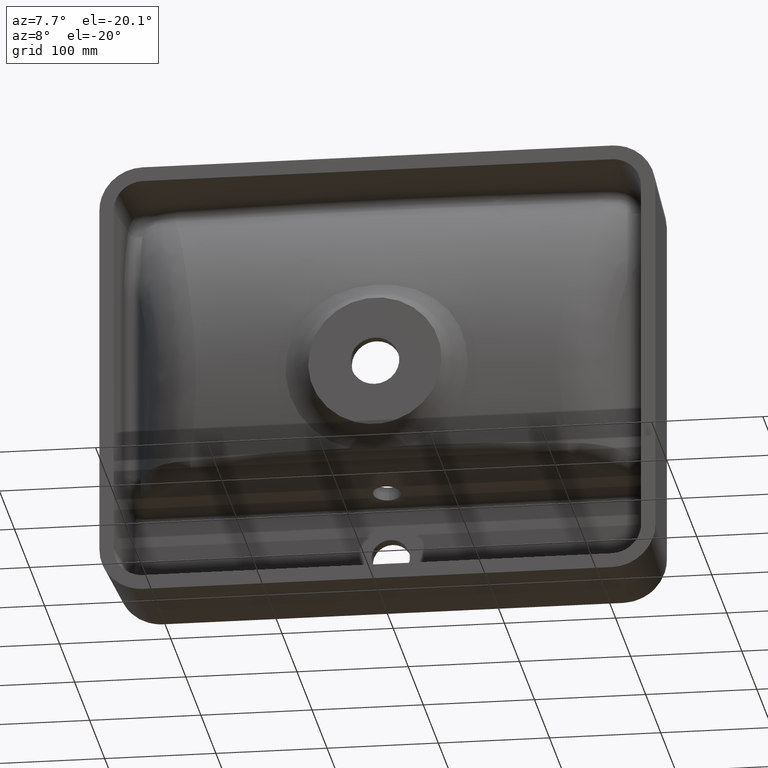
[diagram: clean part render]
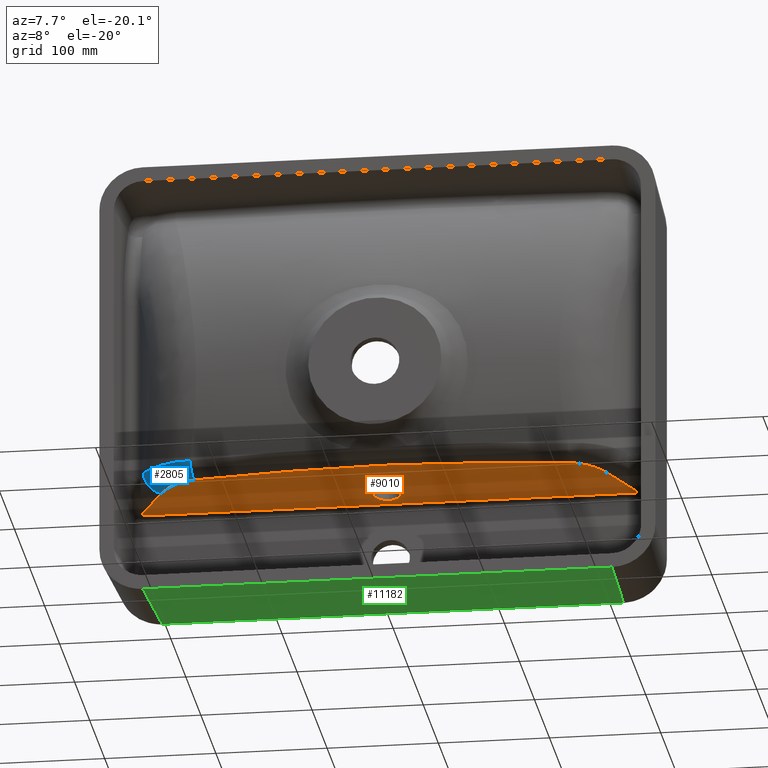
[diagram: same view with three faces highlighted in distinct colors, each labeled with its STEP entity id]
A machine part, auxiliary view with three faces highlighted in distinct colors.
Their STEP definitions:

[orange] entity #9010 — the highlighted planar face has unit normal (0, 0.1736, 0.9848).
#72 = CARTESIAN_POINT ( 'NONE',  ( -112.2322189058417052, 14.36183064371709506, -88.98186102206317116 ) ) ;
#150 = CARTESIAN_POINT ( 'NONE',  ( 244.3859687413687709, 92.74257369032991960, -102.8025007891596232 ) ) ;
#157 = CARTESIAN_POINT ( 'NONE',  ( -35.13712913694892848, 9.897573788452673327, -88.19469208966752660 ) ) ;
#225 = DIRECTION ( 'NONE',  ( 0.5315460139890063607, -0.8341611379077803479, 0.1470851148716148804 ) ) ;
#386 = CARTESIAN_POINT ( 'NONE',  ( -196.9108988935167588, 35.44597624799872904, -92.69956475728351109 ) ) ;
#597 = EDGE_LOOP ( 'NONE', ( #14962, #5832, #6547, #4745, #11209, #6479, #9041, #5111 ) ) ;
#719 = CARTESIAN_POINT ( 'NONE',  ( 179.6458099567844329, 22.47414896784153271, -90.41228161870292013 ) ) ;
#737 = EDGE_CURVE ( 'NONE', #12188, #11615, #1035, .T. ) ;
#1032 = EDGE_CURVE ( 'NONE', #9423, #4418, #12462, .T. ) ;
#1035 = LINE ( 'NONE', #7036, #7816 ) ;
#1075 = CIRCLE ( 'NONE', #3144, 12.49999999999999822 ) ;
#1199 = CARTESIAN_POINT ( 'NONE',  ( 190.3254960337776822, 29.03207218434770098, -91.56862041918746797 ) ) ;
#1435 = CARTESIAN_POINT ( 'NONE',  ( -168.1830258929373940, 19.49272566497119996, -89.88657624949277647 ) ) ;
#1441 = CARTESIAN_POINT ( 'NONE',  ( 98.21972972760023879, 13.34289355543268485, -88.80219492175478990 ) ) ;
#1517 = CARTESIAN_POINT ( 'NONE',  ( -185.5428752960910117, 25.56068567428296845, -90.95652131699436893 ) ) ;
#1718 = CARTESIAN_POINT ( 'NONE',  ( -168.1830258929373940, 19.49272566497119996, -89.88657624949277647 ) ) ;
#1780 = VERTEX_POINT ( 'NONE', #3028 ) ;
#2012 = CARTESIAN_POINT ( 'NONE',  ( 184.1256145856381465, 24.71084304074416949, -90.80667113134639123 ) ) ;
#2053 = VERTEX_POINT ( 'NONE', #1718 ) ;
#2092 = CARTESIAN_POINT ( 'NONE',  ( 168.1830228955440134, 19.49272036721712453, -89.88657531535695000 ) ) ;
#2156 = VERTEX_POINT ( 'NONE', #6824 ) ;
#2570 = CARTESIAN_POINT ( 'NONE',  ( 188.3217901560427947, 27.47404694757935673, -91.29389853332048688 ) ) ;
#2654 = CARTESIAN_POINT ( 'NONE',  ( 77.19849634696660701, 12.00439946092321364, -88.56618229937377862 ) ) ;
#3028 = CARTESIAN_POINT ( 'NONE',  ( 200.7693850947235319, 40.92562268780480395, -93.66577426936574113 ) ) ;
#3144 = AXIS2_PLACEMENT_3D ( 'NONE', #11757, #14426, #8115 ) ;
#3164 = EDGE_CURVE ( 'NONE', #4418, #9423, #1075, .T. ) ;
#3369 = VERTEX_POINT ( 'NONE', #10550 ) ;
#3602 = DIRECTION ( 'NONE',  ( 0.000000000000000000, -0.9848077530122080203, 0.1736481776669307753 ) ) ;
#3841 = EDGE_CURVE ( 'NONE', #2156, #10000, #7661, .T. ) ;
#3863 = CARTESIAN_POINT ( 'NONE',  ( -193.4205650691739891, 31.81351619069727832, -92.05906404283547317 ) ) ;
#3864 = CARTESIAN_POINT ( 'NONE',  ( 193.4626115171106449, 31.82548758118697307, -92.06117492197668639 ) ) ;
#3903 = CARTESIAN_POINT ( 'NONE',  ( -2.832484898710971862E-13, 46.25119439836966961, -94.60481624963537683 ) ) ;
#3982 = AXIS2_PLACEMENT_3D ( 'NONE', #150, #10230, #15155 ) ;
#4024 = CARTESIAN_POINT ( 'NONE',  ( -171.5411002869828963, 19.96590360338471370, -89.97001028671107292 ) ) ;
#4106 = B_SPLINE_CURVE_WITH_KNOTS ( 'NONE', 3,
 ( #5250, #11234, #11150, #72, #14868, #6232, #13894, #11389, #5171, #157, #7516, #10177, #5093, #13655, #14945, #8808, #13730, #7749, #8967, #10099, #2654, #1441, #8886, #13814, #6394, #11313 ),
 .UNSPECIFIED., .F., .F.,
 ( 4, 2, 2, 2, 2, 2, 2, 2, 2, 2, 2, 2, 4 ),
 ( 0.000000000000000000, 0.04212430251815301591, 0.08424860503630603181, 0.1053107562953825432, 0.1263729075544590130, 0.1474350588135355244, 0.1684972100726120081, 0.1895593613316884918, 0.2106215125907650032, 0.2316836638498415146, 0.2527458151089180260, 0.2948701176270710489, 0.3369944201452240717 ),
 .UNSPECIFIED. ) ;
#4418 = VERTEX_POINT ( 'NONE', #9569 ) ;
#4714 = VECTOR ( 'NONE', #225, 1000.000000000000114 ) ;
#4745 = ORIENTED_EDGE ( 'NONE', *, *, #9055, .F. ) ;
#4760 = PLANE ( 'NONE',  #3982 ) ;
#5008 = CARTESIAN_POINT ( 'NONE',  ( 196.9123994016266863, 35.45002385037497561, -92.70027845879093320 ) ) ;
#5031 = CARTESIAN_POINT ( 'NONE',  ( -221.8330235556065873, 77.86824088833463975, -100.1797545961293423 ) ) ;
#5084 = CARTESIAN_POINT ( 'NONE',  ( -98.68438343656839606, -119.2775185368539468, -65.41763807720876400 ) ) ;
#5093 = CARTESIAN_POINT ( 'NONE',  ( -7.045836400741186445, 9.177125483771456871, -88.06765761534673231 ) ) ;
#5111 = ORIENTED_EDGE ( 'NONE', *, *, #3841, .F. ) ;
#5148 = CARTESIAN_POINT ( 'NONE',  ( 168.1830228955440134, 19.49272036721712453, -89.88657531535695000 ) ) ;
#5171 = CARTESIAN_POINT ( 'NONE',  ( -49.16805674985833718, 10.49212591656544369, -88.29952767129135793 ) ) ;
#5225 = ORIENTED_EDGE ( 'NONE', *, *, #1032, .T. ) ;
#5250 = CARTESIAN_POINT ( 'NONE',  ( -168.1830258929373940, 19.49272566497119996, -89.88657624949277647 ) ) ;
#5279 = VECTOR ( 'NONE', #7044, 1000.000000000000227 ) ;
#5322 = CARTESIAN_POINT ( 'NONE',  ( -181.8551785341416576, 23.52309605200449028, -90.59723929097509654 ) ) ;
#5473 = EDGE_CURVE ( 'NONE', #10000, #2053, #10755, .T. ) ;
#5666 = CARTESIAN_POINT ( 'NONE',  ( 181.1696266444409957, 23.16300552676149138, -90.53374561587851588 ) ) ;
#5832 = ORIENTED_EDGE ( 'NONE', *, *, #737, .T. ) ;
#6128 = DIRECTION ( 'NONE',  ( 3.327007231489331233E-15, 0.1736481776669307198, 0.9848077530122080203 ) ) ;
#6232 = CARTESIAN_POINT ( 'NONE',  ( -77.20957060382552584, 12.00507226591963672, -88.56630093304691798 ) ) ;
#6307 = FACE_BOUND ( 'NONE', #9206, .T. ) ;
#6394 = CARTESIAN_POINT ( 'NONE',  ( 154.2073311570084968, 17.99626915134025751, -89.62271059068380907 ) ) ;
#6468 = CARTESIAN_POINT ( 'NONE',  ( -200.7693850088766965, 40.92562255308283170, -93.66577424560925635 ) ) ;
#6479 = ORIENTED_EDGE ( 'NONE', *, *, #15121, .F. ) ;
#6547 = ORIENTED_EDGE ( 'NONE', *, *, #12562, .T. ) ;
#6548 = CARTESIAN_POINT ( 'NONE',  ( -188.3151146062128589, 27.44034242050684824, -91.28795551582432211 ) ) ;
#6824 = CARTESIAN_POINT ( 'NONE',  ( -222.1320546160119136, 74.45030022775046064, -99.57707943920782157 ) ) ;
#6960 = CARTESIAN_POINT ( 'NONE',  ( 185.5577523810154617, 25.56988610528181738, -90.95814360121488562 ) ) ;
#7036 = CARTESIAN_POINT ( 'NONE',  ( 244.3859687413687709, 77.86824088833466817, -100.1797545961309055 ) ) ;
#7044 = DIRECTION ( 'NONE',  ( 0.08584148278562671319, -0.9811726379862916181, 0.1730072088098826011 ) ) ;
#7183 = CARTESIAN_POINT ( 'NONE',  ( 221.8330235556056778, 77.86824088833466817, -100.1797545961308487 ) ) ;
#7278 = CARTESIAN_POINT ( 'NONE',  ( 189.6647810343844753, 28.49857632984722500, -91.47455070594290305 ) ) ;
#7516 = CARTESIAN_POINT ( 'NONE',  ( -28.11899695081145722, 9.642779306662420780, -88.14976494799232398 ) ) ;
#7629 = DIRECTION ( 'NONE',  ( 0.08584148278562545031, 0.9811726379862916181, -0.1730072088098832117 ) ) ;
#7661 = LINE ( 'NONE', #5084, #4714 ) ;
#7744 = CARTESIAN_POINT ( 'NONE',  ( -192.1943826306401206, 30.65289687853375611, -91.85441554376973272 ) ) ;
#7749 = CARTESIAN_POINT ( 'NONE',  ( 49.15288810001597852, 10.49141236696619472, -88.29940185324531399 ) ) ;
#7816 = VECTOR ( 'NONE', #12108, 1000.000000000000000 ) ;
#7841 = VECTOR ( 'NONE', #10625, 1000.000000000000114 ) ;
#8115 = DIRECTION ( 'NONE',  ( 0.000000000000000000, -0.9848077530122080203, 0.1736481776669307753 ) ) ;
#8557 = CARTESIAN_POINT ( 'NONE',  ( 198.9594222417717617, 38.08522762650390092, -93.16493598418733768 ) ) ;
#8723 = CARTESIAN_POINT ( 'NONE',  ( -198.9615862999501132, 38.08862370734021141, -93.16553480486606986 ) ) ;
#8802 = CARTESIAN_POINT ( 'NONE',  ( -178.7668688314405188, 22.13802059198079419, -90.35301311705579508 ) ) ;
#8808 = CARTESIAN_POINT ( 'NONE',  ( 28.10050516226092299, 9.642160192690255371, -88.14965578149508474 ) ) ;
#8886 = CARTESIAN_POINT ( 'NONE',  ( 112.2258559199358103, 14.36133442399170690, -88.98177352513791050 ) ) ;
#8967 = CARTESIAN_POINT ( 'NONE',  ( 56.16656367079246337, 10.83395089832917968, -88.35980063825688546 ) ) ;
#9010 = ADVANCED_FACE ( 'NONE', ( #6307, #11226 ), #4760, .F. ) ;
#9041 = ORIENTED_EDGE ( 'NONE', *, *, #5473, .F. ) ;
#9055 = EDGE_CURVE ( 'NONE', #1780, #3369, #13044, .T. ) ;
#9206 = EDGE_LOOP ( 'NONE', ( #5225, #15852 ) ) ;
#9423 = VERTEX_POINT ( 'NONE', #3903 ) ;
#9569 = CARTESIAN_POINT ( 'NONE',  ( -2.817176813721629842E-13, 70.87138822367488444, -98.94602069130864663 ) ) ;
#9633 = AXIS2_PLACEMENT_3D ( 'NONE', #15967, #6128, #3602 ) ;
#9653 = LINE ( 'NONE', #14012, #13284 ) ;
#9940 = CARTESIAN_POINT ( 'NONE',  ( 192.2490618305297687, 30.67237653191130420, -91.85785033223632468 ) ) ;
#10000 = VERTEX_POINT ( 'NONE', #12048 ) ;
#10093 = CARTESIAN_POINT ( 'NONE',  ( -169.8784616561505914, 19.67426483566622508, -89.91858650334174285 ) ) ;
#10099 = CARTESIAN_POINT ( 'NONE',  ( 70.18937117459839214, 11.59039135307809332, -88.49318149972850733 ) ) ;
#10177 = CARTESIAN_POINT ( 'NONE',  ( -14.07351067298175451, 9.280006458499041599, -88.08579830699268598 ) ) ;
#10230 = DIRECTION ( 'NONE',  ( 3.327007231489331627E-15, 0.1736481776669307198, 0.9848077530122080203 ) ) ;
#10320 = EDGE_CURVE ( 'NONE', #14202, #1780, #13392, .T. ) ;
#10550 = CARTESIAN_POINT ( 'NONE',  ( 222.1320546160111462, 74.45030022775043221, -99.57707943920931370 ) ) ;
#10625 = DIRECTION ( 'NONE',  ( 0.5315460139890098024, 0.8341611379077775723, -0.1470851148716179890 ) ) ;
#10746 = CARTESIAN_POINT ( 'NONE',  ( 171.5583560271140868, 19.96828713398594957, -89.97043056746659317 ) ) ;
#10755 = B_SPLINE_CURVE_WITH_KNOTS ( 'NONE', 3,
 ( #6468, #8723, #386, #14941, #3863, #7744, #11228, #13650, #6548, #1517, #13966, #5322, #11307, #12505, #8802, #13887, #11382, #4024, #10093, #1435 ),
 .UNSPECIFIED., .F., .F.,
 ( 4, 2, 2, 2, 2, 2, 2, 2, 2, 4 ),
 ( 0.000000000000000000, 0.01012735000666620255, 0.01265918750833277054, 0.01519102500999934720, 0.02025470001333243980, 0.02531837501666553761, 0.02785021251833208478, 0.03038205001999862501, 0.03544572502333171587, 0.04050940002666481021 ),
 .UNSPECIFIED. ) ;
#10828 = LINE ( 'NONE', #13093, #5279 ) ;
#10903 = CARTESIAN_POINT ( 'NONE',  ( 169.8820430357938562, 19.67464343780571312, -89.91865326111506818 ) ) ;
#10987 = CARTESIAN_POINT ( 'NONE',  ( 200.7693850947235319, 40.92562268780480395, -93.66577426936574113 ) ) ;
#11150 = CARTESIAN_POINT ( 'NONE',  ( -140.2227317837648002, 16.68673121888342337, -89.39180372092950222 ) ) ;
#11209 = ORIENTED_EDGE ( 'NONE', *, *, #10320, .F. ) ;
#11226 = FACE_OUTER_BOUND ( 'NONE', #597, .T. ) ;
#11228 = CARTESIAN_POINT ( 'NONE',  ( -191.5668760070118140, 30.08946593706811612, -91.75506746702338035 ) ) ;
#11234 = CARTESIAN_POINT ( 'NONE',  ( -154.2087394248811165, 17.99642575700094227, -89.62273820448609740 ) ) ;
#11307 = CARTESIAN_POINT ( 'NONE',  ( -181.0892436354410222, 23.15148138299932157, -90.53171359840247590 ) ) ;
#11313 = CARTESIAN_POINT ( 'NONE',  ( 168.1830228955440134, 19.49272036721712453, -89.88657531535695000 ) ) ;
#11382 = CARTESIAN_POINT ( 'NONE',  ( -174.8057828996572880, 20.75259668009808323, -90.10872550167219686 ) ) ;
#11389 = CARTESIAN_POINT ( 'NONE',  ( -56.18067736772926679, 10.83466658464317334, -88.35992683306332651 ) ) ;
#11615 = VERTEX_POINT ( 'NONE', #7183 ) ;
#11757 = CARTESIAN_POINT ( 'NONE',  ( -2.832484898710971862E-13, 58.56129131102227348, -96.77541847047200463 ) ) ;
#11795 = CARTESIAN_POINT ( 'NONE',  ( 177.2865614718700726, 21.57734810422402560, -90.25415143012455133 ) ) ;
#12048 = CARTESIAN_POINT ( 'NONE',  ( -200.7693850088766965, 40.92562255308283170, -93.66577424560925635 ) ) ;
#12108 = DIRECTION ( 'NONE',  ( 1.000000000000000000, -4.280758082009814169E-33, -3.378331680790584079E-15 ) ) ;
#12188 = VERTEX_POINT ( 'NONE', #5031 ) ;
#12462 = CIRCLE ( 'NONE', #9633, 12.49999999999999822 ) ;
#12505 = CARTESIAN_POINT ( 'NONE',  ( -179.5458807297862336, 22.45943537466641970, -90.40968721524178875 ) ) ;
#12562 = EDGE_CURVE ( 'NONE', #11615, #3369, #10828, .T. ) ;
#13044 = LINE ( 'NONE', #14345, #7841 ) ;
#13087 = CARTESIAN_POINT ( 'NONE',  ( 174.8646218961521015, 20.79692274877389480, -90.11654138352965049 ) ) ;
#13093 = CARTESIAN_POINT ( 'NONE',  ( 220.7074645312280268, 90.73343940681651532, -102.4482362071097725 ) ) ;
#13284 = VECTOR ( 'NONE', #7629, 1000.000000000000227 ) ;
#13392 = B_SPLINE_CURVE_WITH_KNOTS ( 'NONE', 3,
 ( #2092, #10903, #10746, #14622, #13087, #13404, #11795, #719, #5666, #2012, #6960, #15516, #2570, #7278, #1199, #9940, #3864, #5008, #8557, #10987 ),
 .UNSPECIFIED., .F., .F.,
 ( 4, 2, 2, 2, 2, 2, 2, 2, 2, 4 ),
 ( 0.000000000000000000, 0.005106693341185228330, 0.007660040011777839893, 0.01021338668237045146, 0.01532008002355559825, 0.02042677336474074679, 0.02298012003533329503, 0.02553346670592583634, 0.03064016004711085997, 0.04085354672948091070 ),
 .UNSPECIFIED. ) ;
#13404 = CARTESIAN_POINT ( 'NONE',  ( 176.4878595387494329, 21.30122095968318519, -90.20546276443599254 ) ) ;
#13650 = CARTESIAN_POINT ( 'NONE',  ( -189.6471232834188640, 28.45607814126722346, -91.46705712866373972 ) ) ;
#13655 = CARTESIAN_POINT ( 'NONE',  ( 7.022422795735915102, 9.176905844665048662, -88.06761888704629371 ) ) ;
#13730 = CARTESIAN_POINT ( 'NONE',  ( 35.11977020737570143, 9.896909188308086414, -88.19457490273086364 ) ) ;
#13814 = CARTESIAN_POINT ( 'NONE',  ( 140.2197569084079305, 16.68644729968887930, -89.39175365831613362 ) ) ;
#13887 = CARTESIAN_POINT ( 'NONE',  ( -176.4077974533057613, 21.24774977920164432, -90.19603435262550306 ) ) ;
#13894 = CARTESIAN_POINT ( 'NONE',  ( -70.20143762549369626, 11.59108673206868723, -88.49330411380586270 ) ) ;
#13966 = CARTESIAN_POINT ( 'NONE',  ( -184.1026862962939390, 24.69670624552038873, -90.80417843292649138 ) ) ;
#14012 = CARTESIAN_POINT ( 'NONE',  ( -217.1058213476393917, 131.9004093711287453, -109.7070837258315237 ) ) ;
#14202 = VERTEX_POINT ( 'NONE', #5148 ) ;
#14345 = CARTESIAN_POINT ( 'NONE',  ( 236.7825760661873460, 97.44152830997992965, -103.6310532697285822 ) ) ;
#14384 = EDGE_CURVE ( 'NONE', #2156, #12188, #9653, .T. ) ;
#14426 = DIRECTION ( 'NONE',  ( 3.327007231489331233E-15, 0.1736481776669307198, 0.9848077530122080203 ) ) ;
#14622 = CARTESIAN_POINT ( 'NONE',  ( 174.0402476093755695, 20.56903805388512296, -90.07635916333026671 ) ) ;
#14868 = CARTESIAN_POINT ( 'NONE',  ( -98.22791138414089573, 13.34347690973672584, -88.80229778285726638 ) ) ;
#14941 = CARTESIAN_POINT ( 'NONE',  ( -194.0162246218370399, 32.40777408153223860, -92.16384774248852807 ) ) ;
#14945 = CARTESIAN_POINT ( 'NONE',  ( 14.05261913934812412, 9.279608575482162891, -88.08572814948178120 ) ) ;
#14962 = ORIENTED_EDGE ( 'NONE', *, *, #14384, .T. ) ;
#15121 = EDGE_CURVE ( 'NONE', #2053, #14202, #4106, .T. ) ;
#15155 = DIRECTION ( 'NONE',  ( 6.062893718482056014E-16, -0.9848077530122080203, 0.1736481776669307198 ) ) ;
#15516 = CARTESIAN_POINT ( 'NONE',  ( 187.6391512178089442, 26.98246829571498395, -91.20721995385650871 ) ) ;
#15852 = ORIENTED_EDGE ( 'NONE', *, *, #3164, .T. ) ;
#15967 = CARTESIAN_POINT ( 'NONE',  ( -2.832484898710971862E-13, 58.56129131102227348, -96.77541847047200463 ) ) ;

[blue] entity #2805 — the highlighted face is a freeform B-spline surface patch.
#181 = CARTESIAN_POINT ( 'NONE',  ( -204.1076319682595681, 20.41183573696174491, -76.00420088946626151 ) ) ;
#259 = CARTESIAN_POINT ( 'NONE',  ( -194.0162246218023370, 32.40777408156363748, -92.16384774249408451 ) ) ;
#308 = CIRCLE ( 'NONE', #2367, 17.99999999999998934 ) ;
#339 = CARTESIAN_POINT ( 'NONE',  ( -185.1087531460522655, 8.804436120552070477, -76.23242809926044572 ) ) ;
#386 = CARTESIAN_POINT ( 'NONE',  ( -196.9108988935167588, 35.44597624799872904, -92.69956475728351109 ) ) ;
#417 = CARTESIAN_POINT ( 'NONE',  ( -200.9777088351101213, 19.74356769864661132, -89.93080646792820687 ) ) ;
#1385 = CARTESIAN_POINT ( 'NONE',  ( -176.4077974533087740, 21.24774977925260444, -90.19603435263454116 ) ) ;
#1435 = CARTESIAN_POINT ( 'NONE',  ( -168.1830258929373940, 19.49272566497119996, -89.88657624949277647 ) ) ;
#1469 = CARTESIAN_POINT ( 'NONE',  ( -198.2793129330779607, 17.88354400040825354, -89.60283410516339586 ) ) ;
#1517 = CARTESIAN_POINT ( 'NONE',  ( -185.5428752960910117, 25.56068567428296845, -90.95652131699436893 ) ) ;
#1549 = CARTESIAN_POINT ( 'NONE',  ( -203.2286169021439548, 19.64330478522038703, -76.00988901599609449 ) ) ;
#1628 = CARTESIAN_POINT ( 'NONE',  ( -179.5458807297880242, 22.45943537465525708, -90.40968721523981344 ) ) ;
#1689 = ORIENTED_EDGE ( 'NONE', *, *, #5473, .T. ) ;
#1711 = CARTESIAN_POINT ( 'NONE',  ( -174.7766173686249545, 5.882775381277977722, -76.47677071783314773 ) ) ;
#1718 = CARTESIAN_POINT ( 'NONE',  ( -168.1830258929373940, 19.49272566497119996, -89.88657624949277647 ) ) ;
#1943 = CARTESIAN_POINT ( 'NONE',  ( -214.6537402612397898, 32.34498519274598038, -92.15277636730678523 ) ) ;
#2053 = VERTEX_POINT ( 'NONE', #1718 ) ;
#2103 = CARTESIAN_POINT ( 'NONE',  ( -196.9108988936710603, 35.44597624788855939, -92.69956475726407064 ) ) ;
#2135 = CARTESIAN_POINT ( 'NONE',  ( -200.7693850088797944, 44.05128975109236222, -75.93923469139035376 ) ) ;
#2302 = CARTESIAN_POINT ( 'NONE',  ( -168.1830258929373940, 22.61839286297597695, -72.16003669527309228 ) ) ;
#2363 =( BOUNDED_SURFACE ( )  B_SPLINE_SURFACE ( 3, 2, ( 
 ( #4707, #5430, #12537 ),
 ( #10357, #13839, #12693 ),
 ( #1711, #5119, #5197 ),
 ( #7540, #15210, #13760 ),
 ( #6579, #14970, #1385 ),
 ( #339, #12773, #6657 ),
 ( #11570, #10203, #1628 ),
 ( #8913, #3977, #2682 ),
 ( #8993, #7774, #7699 ),
 ( #15132, #11493, #4055 ),
 ( #15047, #13919, #10124 ),
 ( #11261, #15286, #3894 ),
 ( #12618, #1469, #6421 ),
 ( #1549, #417, #5353 ),
 ( #181, #4133, #6501 ),
 ( #13678, #2839, #10279 ),
 ( #2598, #6341, #259 ),
 ( #11414, #9473, #2103 ),
 ( #10521, #12854, #10599 ),
 ( #4450, #1943, #3242 ) ),
 .UNSPECIFIED., .F., .F., .T. ) 
 B_SPLINE_SURFACE_WITH_KNOTS ( ( 4, 2, 2, 2, 2, 2, 2, 2, 2, 4 ),
 ( 3, 3 ),
 ( 5.724587470723463412E-17, 0.005036300449899494026, 0.01007260089979893081, 0.01259075112474864963, 0.01510890134969836845, 0.02014520179959780610, 0.02518150224949724375, 0.02769965247444696257, 0.03021780269939668140, 0.04029040359919555669 ),
 ( 0.000000000000000000, 1.000000000000000000 ),
 .UNSPECIFIED. ) 
 GEOMETRIC_REPRESENTATION_ITEM ( )  RATIONAL_B_SPLINE_SURFACE ( (
 ( 1.000000000000000000, 0.8402170492848891614, 1.000000000000000000),
 ( 1.000000000000000000, 0.8382178776348201410, 1.000000000000000000),
 ( 1.000000000000000000, 0.8359541121217792803, 1.000000000000000000),
 ( 1.000000000000000000, 0.8308836997058035578, 1.000000000000000000),
 ( 1.000000000000000000, 0.8280774930971528391, 1.000000000000000000),
 ( 1.000000000000000000, 0.8234307872511074100, 1.000000000000000000),
 ( 1.000000000000000000, 0.8218087550775682315, 1.000000000000000000),
 ( 1.000000000000000000, 0.8184103627092843558, 1.000000000000000000),
 ( 1.000000000000000000, 0.8166295750641029416, 1.000000000000000000),
 ( 1.000000000000000000, 0.8111127485171947260, 1.000000000000000000),
 ( 1.000000000000000000, 0.8071852793498358603, 1.000000000000000000),
 ( 1.000000000000000000, 0.7987947406924974514, 1.000000000000000000),
 ( 1.000000000000000000, 0.7943316998158014286, 1.000000000000000000),
 ( 1.000000000000000000, 0.7871923899296985327, 1.000000000000000000),
 ( 1.000000000000000000, 0.7847355841746281868, 1.000000000000000000),
 ( 1.000000000000000000, 0.7796758479490202287, 1.000000000000000000),
 ( 1.000000000000000000, 0.7770856616009893525, 1.000000000000000000),
 ( 1.000000000000000000, 0.7638199910487828426, 1.000000000000000000),
 ( 1.000000000000000000, 0.7522054675969999105, 1.000000000000000000),
 ( 1.000000000000000000, 0.7393635528574675764, 1.000000000000000000) ) ) 
 REPRESENTATION_ITEM ( '' )  SURFACE ( )  );
#2367 = AXIS2_PLACEMENT_3D ( 'NONE', #2135, #10469, #3269 ) ;
#2598 = CARTESIAN_POINT ( 'NONE',  ( -206.6523613631027558, 22.80427630701555941, -75.98927282610344491 ) ) ;
#2682 = CARTESIAN_POINT ( 'NONE',  ( -181.0892436354425570, 23.15148138301201186, -90.53171359840470700 ) ) ;
#2767 = CARTESIAN_POINT ( 'NONE',  ( -172.3133365613030605, 5.493110470189622063, -76.55067010359861968 ) ) ;
#2805 = ADVANCED_FACE ( 'NONE', ( #10851 ), #2363, .T. ) ;
#2839 = CARTESIAN_POINT ( 'NONE',  ( -203.6218000491249427, 21.72245277791423135, -90.27973729911730061 ) ) ;
#2926 = CARTESIAN_POINT ( 'NONE',  ( -192.2719337965354782, 12.05272038079568553, -76.11537982309046413 ) ) ;
#3009 = CARTESIAN_POINT ( 'NONE',  ( -189.0952848458216806, 10.49303187882472521, -76.16296552134804188 ) ) ;
#3085 = CARTESIAN_POINT ( 'NONE',  ( -213.3130357326990634, 30.46764702914906664, -75.95544478135174415 ) ) ;
#3242 = CARTESIAN_POINT ( 'NONE',  ( -200.7693850088766396, 40.92562255308288144, -93.66577424560925635 ) ) ;
#3269 = DIRECTION ( 'NONE',  ( 0.8433333673428665689, 0.5373907624123637206, -3.083952846180992055E-15 ) ) ;
#3304 = EDGE_CURVE ( 'NONE', #14441, #10000, #308, .T. ) ;
#3863 = CARTESIAN_POINT ( 'NONE',  ( -193.4205650691739891, 31.81351619069727832, -92.05906404283547317 ) ) ;
#3894 = CARTESIAN_POINT ( 'NONE',  ( -188.3151146062403427, 27.44034242046401673, -91.28795551581676193 ) ) ;
#3977 = CARTESIAN_POINT ( 'NONE',  ( -186.5604433756641356, 11.92873240627224796, -88.55284015608314974 ) ) ;
#4024 = CARTESIAN_POINT ( 'NONE',  ( -171.5411002869828963, 19.96590360338471370, -89.97001028671107292 ) ) ;
#4055 = CARTESIAN_POINT ( 'NONE',  ( -184.1026862964115480, 24.69670624538704828, -90.80417843290292979 ) ) ;
#4133 = CARTESIAN_POINT ( 'NONE',  ( -201.8684451373426327, 20.38920293336778045, -90.04464937950720582 ) ) ;
#4216 = CARTESIAN_POINT ( 'NONE',  ( -206.3647363555370475, 22.52016553719071723, -75.99085335918300643 ) ) ;
#4450 = CARTESIAN_POINT ( 'NONE',  ( -215.9493856210467300, 34.37825602766279331, -75.93923469139065219 ) ) ;
#4707 = CARTESIAN_POINT ( 'NONE',  ( -169.9559057922996601, 5.272773151807495395, -76.63064892381187576 ) ) ;
#4827 = ORIENTED_EDGE ( 'NONE', *, *, #3304, .T. ) ;
#5119 = CARTESIAN_POINT ( 'NONE',  ( -173.8594777820647153, 8.543454950358057687, -87.95592440343587270 ) ) ;
#5197 = CARTESIAN_POINT ( 'NONE',  ( -171.5411002869724655, 19.96590360345385662, -89.97001028672328005 ) ) ;
#5259 = CIRCLE ( 'NONE', #5521, 17.99999999999999645 ) ;
#5282 = CARTESIAN_POINT ( 'NONE',  ( -194.3124425667527078, 13.20830729227267675, -76.09003935048275480 ) ) ;
#5322 = CARTESIAN_POINT ( 'NONE',  ( -181.8551785341416576, 23.52309605200449028, -90.59723929097509654 ) ) ;
#5353 = CARTESIAN_POINT ( 'NONE',  ( -191.5668760070189194, 30.08946593706103201, -91.75506746702211558 ) ) ;
#5430 = CARTESIAN_POINT ( 'NONE',  ( -169.4386693583285535, 8.119589167983916056, -87.88118542979377423 ) ) ;
#5473 = EDGE_CURVE ( 'NONE', #10000, #2053, #10755, .T. ) ;
#5521 = AXIS2_PLACEMENT_3D ( 'NONE', #2302, #8529, #10716 ) ;
#5908 = ORIENTED_EDGE ( 'NONE', *, *, #6648, .F. ) ;
#6108 = CARTESIAN_POINT ( 'NONE',  ( -181.4380113180945955, 7.506312548762181791, -76.30696098930620508 ) ) ;
#6187 = CARTESIAN_POINT ( 'NONE',  ( -169.9559057922997738, 5.272773151807517600, -76.63064892381193260 ) ) ;
#6341 = CARTESIAN_POINT ( 'NONE',  ( -204.4802000163830940, 22.40718567279392204, -90.40047418306620841 ) ) ;
#6421 = CARTESIAN_POINT ( 'NONE',  ( -189.6471232834126965, 28.45607814128851487, -91.46705712866749138 ) ) ;
#6468 = CARTESIAN_POINT ( 'NONE',  ( -200.7693850088766965, 40.92562255308283170, -93.66577424560925635 ) ) ;
#6501 = CARTESIAN_POINT ( 'NONE',  ( -192.1943826306475671, 30.65289687853471179, -91.85441554376988904 ) ) ;
#6548 = CARTESIAN_POINT ( 'NONE',  ( -188.3151146062128589, 27.44034242050684824, -91.28795551582432211 ) ) ;
#6579 = CARTESIAN_POINT ( 'NONE',  ( -181.7424811716616659, 7.598884979003831752, -76.30012229949490177 ) ) ;
#6648 = EDGE_CURVE ( 'NONE', #12253, #2053, #5259, .T. ) ;
#6657 = CARTESIAN_POINT ( 'NONE',  ( -178.7668688314411156, 22.13802059195613481, -90.35301311705141813 ) ) ;
#7540 = CARTESIAN_POINT ( 'NONE',  ( -179.4520708576715435, 6.931932531868450376, -76.35281580650516275 ) ) ;
#7699 = CARTESIAN_POINT ( 'NONE',  ( -181.8551785340857521, 23.52309605207273790, -90.59723929098714734 ) ) ;
#7744 = CARTESIAN_POINT ( 'NONE',  ( -192.1943826306401206, 30.65289687853375611, -91.85441554376973272 ) ) ;
#7774 = CARTESIAN_POINT ( 'NONE',  ( -187.5928784331945565, 12.33832742051727216, -88.62506280826058003 ) ) ;
#7938 = CARTESIAN_POINT ( 'NONE',  ( -198.2468393539030842, 15.73919177668080316, -76.04845984929724523 ) ) ;
#8013 = CARTESIAN_POINT ( 'NONE',  ( -214.6782947097156864, 32.38351876489372927, -75.94802052758517164 ) ) ;
#8163 = CARTESIAN_POINT ( 'NONE',  ( -169.9559057922997738, 5.272773151807517600, -76.63064892381193260 ) ) ;
#8352 = EDGE_CURVE ( 'NONE', #12253, #14441, #14759, .T. ) ;
#8529 = DIRECTION ( 'NONE',  ( 0.9941411109066833340, -0.1064478859911380110, 0.01876963433962450939 ) ) ;
#8723 = CARTESIAN_POINT ( 'NONE',  ( -198.9615862999501132, 38.08862370734021141, -93.16553480486606986 ) ) ;
#8802 = CARTESIAN_POINT ( 'NONE',  ( -178.7668688314405188, 22.13802059198079419, -90.35301311705579508 ) ) ;
#8913 = CARTESIAN_POINT ( 'NONE',  ( -188.4169754825966550, 10.18101788330412383, -76.17382246263451862 ) ) ;
#8993 = CARTESIAN_POINT ( 'NONE',  ( -189.5064392850121919, 10.68668108777291792, -76.15652972000859222 ) ) ;
#9473 = CARTESIAN_POINT ( 'NONE',  ( -208.7304711847319822, 25.95300556541774739, -91.02569789887560603 ) ) ;
#9813 = CARTESIAN_POINT ( 'NONE',  ( -185.8444518868658406, 9.090864787669639568, -76.21864162161020317 ) ) ;
#10000 = VERTEX_POINT ( 'NONE', #12048 ) ;
#10093 = CARTESIAN_POINT ( 'NONE',  ( -169.8784616561505914, 19.67426483566622508, -89.91858650334174285 ) ) ;
#10124 = CARTESIAN_POINT ( 'NONE',  ( -185.5428752960682175, 25.56068567432907201, -90.95652131700251175 ) ) ;
#10131 = CARTESIAN_POINT ( 'NONE',  ( -174.6314994443256126, 5.859200834454941109, -76.48109050703727974 ) ) ;
#10203 = CARTESIAN_POINT ( 'NONE',  ( -184.4874862051013906, 11.17120953937109817, -88.41926843615284781 ) ) ;
#10279 = CARTESIAN_POINT ( 'NONE',  ( -193.4205650691723406, 31.81351619070179382, -92.05906404283622635 ) ) ;
#10357 = CARTESIAN_POINT ( 'NONE',  ( -172.3915549363392188, 5.500421152352525489, -76.54801644641949565 ) ) ;
#10364 = CARTESIAN_POINT ( 'NONE',  ( -203.7656306263460806, 20.10909422704896343, -76.00638327977053166 ) ) ;
#10469 = DIRECTION ( 'NONE',  ( 0.5315460139890063607, -0.8341611379077804589, 0.1470851148716149082 ) ) ;
#10521 = CARTESIAN_POINT ( 'NONE',  ( -213.5012291482619844, 30.53633654116656615, -75.95615645679663430 ) ) ;
#10555 = EDGE_LOOP ( 'NONE', ( #5908, #10904, #4827, #1689 ) ) ;
#10599 = CARTESIAN_POINT ( 'NONE',  ( -198.9616685800170899, 38.08875283028925907, -93.16555757272580252 ) ) ;
#10716 = DIRECTION ( 'NONE',  ( -0.1064666416981123881, -0.9943162747363264442, 0.000000000000000000 ) ) ;
#10755 = B_SPLINE_CURVE_WITH_KNOTS ( 'NONE', 3,
 ( #6468, #8723, #386, #14941, #3863, #7744, #11228, #13650, #6548, #1517, #13966, #5322, #11307, #12505, #8802, #13887, #11382, #4024, #10093, #1435 ),
 .UNSPECIFIED., .F., .F.,
 ( 4, 2, 2, 2, 2, 2, 2, 2, 2, 4 ),
 ( 0.000000000000000000, 0.01012735000666620255, 0.01265918750833277054, 0.01519102500999934720, 0.02025470001333243980, 0.02531837501666553761, 0.02785021251833208478, 0.03038205001999862501, 0.03544572502333171587, 0.04050940002666481021 ),
 .UNSPECIFIED. ) ;
#10851 = FACE_OUTER_BOUND ( 'NONE', #10555, .T. ) ;
#10904 = ORIENTED_EDGE ( 'NONE', *, *, #8352, .T. ) ;
#11025 = CARTESIAN_POINT ( 'NONE',  ( -184.7496812791609671, 8.669381373289544612, -76.23936779414178488 ) ) ;
#11228 = CARTESIAN_POINT ( 'NONE',  ( -191.5668760070118140, 30.08946593706811612, -91.75506746702338035 ) ) ;
#11261 = CARTESIAN_POINT ( 'NONE',  ( -198.6577752142769100, 16.02838973844446713, -76.04470728596020024 ) ) ;
#11307 = CARTESIAN_POINT ( 'NONE',  ( -181.0892436354410222, 23.15148138299932157, -90.53171359840247590 ) ) ;
#11382 = CARTESIAN_POINT ( 'NONE',  ( -174.8057828996572880, 20.75259668009808323, -90.10872550167219686 ) ) ;
#11414 = CARTESIAN_POINT ( 'NONE',  ( -210.6797621292510598, 26.94307967503048573, -75.96796232647666614 ) ) ;
#11493 = CARTESIAN_POINT ( 'NONE',  ( -190.6406589500579116, 13.64158078491106707, -88.85486153910724738 ) ) ;
#11570 = CARTESIAN_POINT ( 'NONE',  ( -186.2192540173143982, 9.240566468752732021, -76.21175902264967306 ) ) ;
#11575 = CARTESIAN_POINT ( 'NONE',  ( -208.8409164634452964, 25.03524194802825420, -75.97759942594049676 ) ) ;
#11654 = CARTESIAN_POINT ( 'NONE',  ( -205.5144220173817189, 21.70176347499101510, -75.99564585930474436 ) ) ;
#12048 = CARTESIAN_POINT ( 'NONE',  ( -200.7693850088766965, 40.92562255308283170, -93.66577424560925635 ) ) ;
#12253 = VERTEX_POINT ( 'NONE', #8163 ) ;
#12505 = CARTESIAN_POINT ( 'NONE',  ( -179.5458807297862336, 22.45943537466641970, -90.40968721524178875 ) ) ;
#12537 = CARTESIAN_POINT ( 'NONE',  ( -168.1830258929373940, 19.49272566497121417, -89.88657624949279068 ) ) ;
#12618 = CARTESIAN_POINT ( 'NONE',  ( -200.5341556728986063, 17.41484400347431816, -76.02907638500784060 ) ) ;
#12624 = CARTESIAN_POINT ( 'NONE',  ( -179.1938480225036869, 6.865759970333757956, -76.35922930596208857 ) ) ;
#12693 = CARTESIAN_POINT ( 'NONE',  ( -169.8784279238177817, 19.67426122402836697, -89.91858586651257212 ) ) ;
#12773 = CARTESIAN_POINT ( 'NONE',  ( -183.4445094782523142, 10.82181119352010690, -88.35766008075962930 ) ) ;
#12785 = CARTESIAN_POINT ( 'NONE',  ( -215.9493856210516753, 34.37825602767022559, -75.93923469138727000 ) ) ;
#12854 = CARTESIAN_POINT ( 'NONE',  ( -211.8271247406706266, 29.05303752647485993, -91.57231717445020536 ) ) ;
#12860 = CARTESIAN_POINT ( 'NONE',  ( -202.8729885514314617, 19.34009244129971350, -76.01229321897632474 ) ) ;
#13650 = CARTESIAN_POINT ( 'NONE',  ( -189.6471232834188640, 28.45607814126722346, -91.46705712866373972 ) ) ;
#13678 = CARTESIAN_POINT ( 'NONE',  ( -205.8216102590301944, 21.99431940549646214, -75.99388118416035809 ) ) ;
#13760 = CARTESIAN_POINT ( 'NONE',  ( -174.8057828996694525, 20.75259668002847491, -90.10872550165990447 ) ) ;
#13839 = CARTESIAN_POINT ( 'NONE',  ( -171.6696333070244407, 8.265153647347185384, -87.90685237487278414 ) ) ;
#13887 = CARTESIAN_POINT ( 'NONE',  ( -176.4077974533057613, 21.24774977920164432, -90.19603435262550306 ) ) ;
#13919 = CARTESIAN_POINT ( 'NONE',  ( -192.6057900891967449, 14.60956471800056633, -89.02554322342666637 ) ) ;
#13966 = CARTESIAN_POINT ( 'NONE',  ( -184.1026862962939390, 24.69670624552038873, -90.80417843292649138 ) ) ;
#14166 = CARTESIAN_POINT ( 'NONE',  ( -200.1406930907369315, 17.11454085464310637, -76.03223162963406878 ) ) ;
#14441 = VERTEX_POINT ( 'NONE', #12785 ) ;
#14739 = CARTESIAN_POINT ( 'NONE',  ( -188.0156334442906996, 10.00183466420795497, -76.18046255624270202 ) ) ;
#14759 = B_SPLINE_CURVE_WITH_KNOTS ( 'NONE', 3,
 ( #6187, #2767, #10131, #12624, #6108, #11025, #9813, #14739, #3009, #2926, #5282, #7938, #14166, #12860, #10364, #11654, #4216, #11575, #15138, #3085, #8013, #15455 ),
 .UNSPECIFIED., .F., .F.,
 ( 4, 2, 2, 2, 2, 2, 2, 2, 2, 2, 4 ),
 ( 0.000000000000000000, 0.007002506947166677910, 0.01400501389433335582, 0.01750626736791669608, 0.02100752084150003113, 0.02801002778866671164, 0.03501253473583339215, 0.03851378820941669945, 0.04201504168299999981, 0.04901754863016662134, 0.05602005557733323593 ),
 .UNSPECIFIED. ) ;
#14941 = CARTESIAN_POINT ( 'NONE',  ( -194.0162246218370399, 32.40777408153223860, -92.16384774248852807 ) ) ;
#14970 = CARTESIAN_POINT ( 'NONE',  ( -180.3016652753137237, 9.864661026592443704, -88.18888868174306594 ) ) ;
#15047 = CARTESIAN_POINT ( 'NONE',  ( -194.7404026676350952, 13.46354483694967996, -76.08504074666412009 ) ) ;
#15132 = CARTESIAN_POINT ( 'NONE',  ( -192.6994696150965751, 12.28506742449018319, -76.10973140417254967 ) ) ;
#15138 = CARTESIAN_POINT ( 'NONE',  ( -210.3943373056752648, 26.79351642326607319, -75.97023640786211729 ) ) ;
#15210 = CARTESIAN_POINT ( 'NONE',  ( -178.1742650374149832, 9.342131173208352735, -88.09675257035367224 ) ) ;
#15286 = CARTESIAN_POINT ( 'NONE',  ( -196.4244470160222988, 16.72881119554872953, -89.39922355613593652 ) ) ;
#15455 = CARTESIAN_POINT ( 'NONE',  ( -215.9493856210516753, 34.37825602767022559, -75.93923469138727000 ) ) ;

[green] entity #11182 — the highlighted planar face has unit normal (-0, 0.0349, -0.9994).
#210 = ORIENTED_EDGE ( 'NONE', *, *, #6584, .T. ) ;
#432 = EDGE_CURVE ( 'NONE', #11937, #11167, #11714, .T. ) ;
#531 = LINE ( 'NONE', #9666, #7072 ) ;
#648 = LINE ( 'NONE', #9224, #3989 ) ;
#933 = VERTEX_POINT ( 'NONE', #15438 ) ;
#1473 = VECTOR ( 'NONE', #6642, 1000.000000000000000 ) ;
#1527 = ORIENTED_EDGE ( 'NONE', *, *, #12290, .T. ) ;
#1912 = ORIENTED_EDGE ( 'NONE', *, *, #432, .T. ) ;
#1919 = DIRECTION ( 'NONE',  ( 1.000000000000000000, -0.000000000000000000, -3.602503641305649009E-15 ) ) ;
#3989 = VECTOR ( 'NONE', #12849, 1000.000000000000000 ) ;
#4235 = AXIS2_PLACEMENT_3D ( 'NONE', #14406, #6980, #4697 ) ;
#4326 = ORIENTED_EDGE ( 'NONE', *, *, #13144, .T. ) ;
#4697 = DIRECTION ( 'NONE',  ( 1.218509414717998803E-16, 0.9993908270190956511, 0.03489949670250104552 ) ) ;
#6089 = PLANE ( 'NONE',  #4235 ) ;
#6584 = EDGE_CURVE ( 'NONE', #11696, #933, #531, .T. ) ;
#6642 = DIRECTION ( 'NONE',  ( 0.03487826274237457169, -0.9987827659587182882, -0.03487826274237482149 ) ) ;
#6980 = DIRECTION ( 'NONE',  ( -3.600309093423756996E-15, 0.03489949670250105246, -0.9993908270190957621 ) ) ;
#7072 = VECTOR ( 'NONE', #8369, 1000.000000000000000 ) ;
#8336 = FACE_OUTER_BOUND ( 'NONE', #9118, .T. ) ;
#8369 = DIRECTION ( 'NONE',  ( 0.03487826274237482843, 0.9987827659587182882, 0.03487826274237455781 ) ) ;
#9118 = EDGE_LOOP ( 'NONE', ( #210, #4326, #1912, #1527 ) ) ;
#9224 = CARTESIAN_POINT ( 'NONE',  ( 249.9999999999992610, -4.999999999999990230, -200.0000000000009379 ) ) ;
#9481 = CARTESIAN_POINT ( 'NONE',  ( 211.0237577462545460, -4.999999999967030817, -200.0000000000007958 ) ) ;
#9666 = CARTESIAN_POINT ( 'NONE',  ( -210.4629254744209845, 11.06013498549980234, -199.4391677281643069 ) ) ;
#9941 = VECTOR ( 'NONE', #1919, 1000.000000000000000 ) ;
#10498 = CARTESIAN_POINT ( 'NONE',  ( 207.3570769496209323, 98.06979899340501561, -196.4007233077913099 ) ) ;
#11167 = VERTEX_POINT ( 'NONE', #9481 ) ;
#11182 = ADVANCED_FACE ( 'NONE', ( #8336 ), #6089, .T. ) ;
#11636 = CARTESIAN_POINT ( 'NONE',  ( 211.0711720803825528, -6.357768881332150457, -200.0474143341288595 ) ) ;
#11696 = VERTEX_POINT ( 'NONE', #15971 ) ;
#11714 = LINE ( 'NONE', #11636, #1473 ) ;
#11937 = VERTEX_POINT ( 'NONE', #15932 ) ;
#12290 = EDGE_CURVE ( 'NONE', #11167, #11696, #648, .T. ) ;
#12849 = DIRECTION ( 'NONE',  ( -1.000000000000000000, 0.000000000000000000, 3.602503641305649009E-15 ) ) ;
#12910 = LINE ( 'NONE', #10498, #9941 ) ;
#13144 = EDGE_CURVE ( 'NONE', #933, #11937, #12910, .T. ) ;
#14406 = CARTESIAN_POINT ( 'NONE',  ( 249.9999999999992610, -4.999999999999990230, -200.0000000000009379 ) ) ;
#15438 = CARTESIAN_POINT ( 'NONE',  ( -207.4244810540465096, 98.06979899340502982, -196.4007233077898320 ) ) ;
#15932 = CARTESIAN_POINT ( 'NONE',  ( 207.4244810540450032, 98.06979899340501561, -196.4007233077912815 ) ) ;
#15971 = CARTESIAN_POINT ( 'NONE',  ( -211.0237577462560523, -4.999999999967030817, -199.9999999999993179 ) ) ;